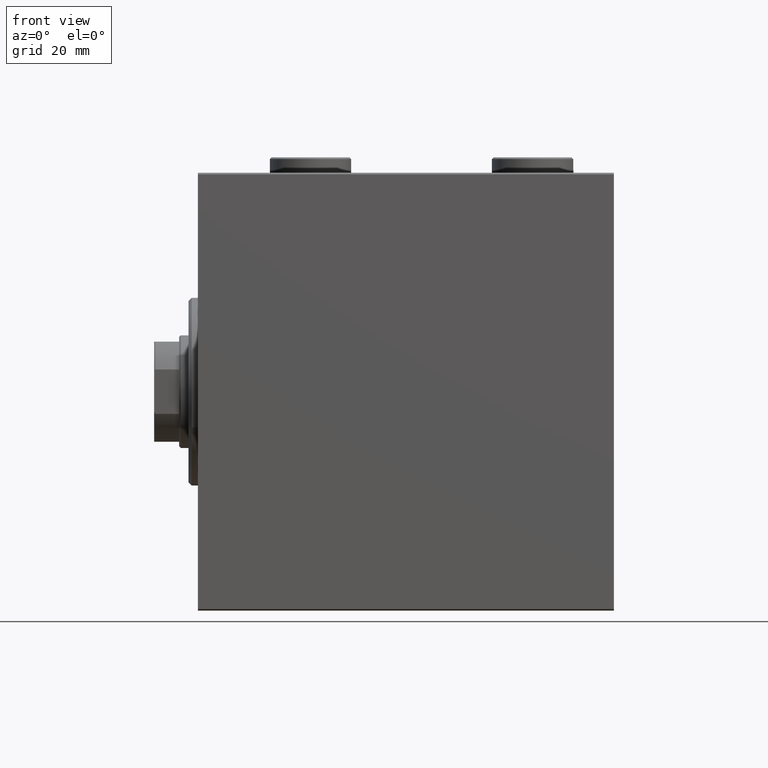
[diagram: clean part render]
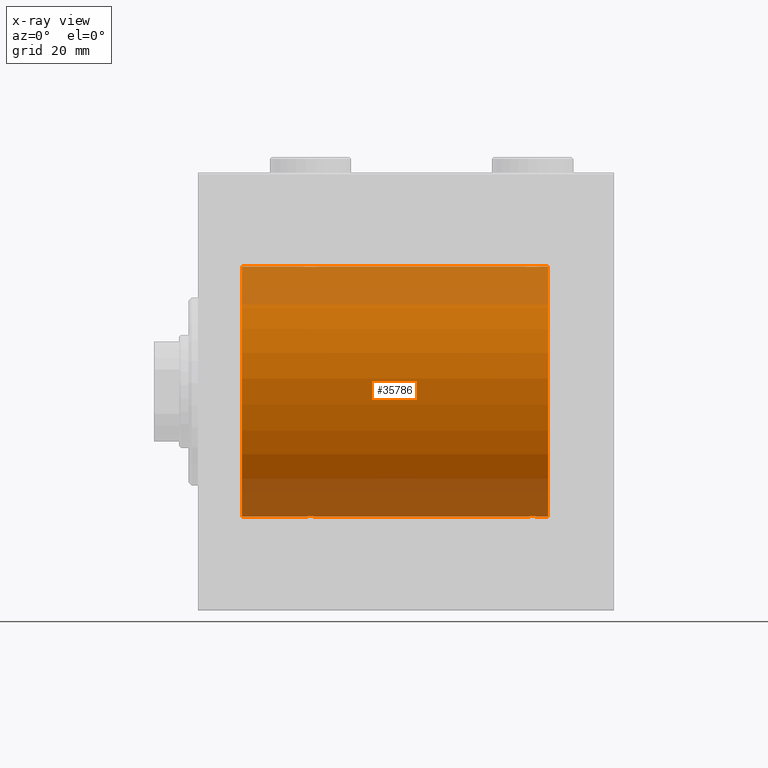
[diagram: x-ray — body ghosted, one internal face saturated and labeled with its STEP entity id]
A machine part, front view, then the same camera in x-ray: the body is ghosted and one INTERNAL B-rep face — a face not visible from any outside direction — is saturated and labeled: STEP entity #35786.
In plain terms, the highlighted cylindrical surface (partial cylindrical patch) has radius 40 mm, axis along (-1, -0, -0).
Its self-contained STEP definition (entity closure, byte-faithful):
#107 = CARTESIAN_POINT ( 'NONE',  ( 35.79958713980801832, -2.999840380514748883, 39.88735335562824247 ) ) ;
#132 = CARTESIAN_POINT ( 'NONE',  ( 107.9693834189446875, -2.845855236045339520, -39.89870693240651178 ) ) ;
#343 = CARTESIAN_POINT ( 'NONE',  ( 32.99999999999999289, -1.483452932268112700E-23, 40.00000000000000000 ) ) ;
#372 = CARTESIAN_POINT ( 'NONE',  ( 37.50443082913467663, -2.602909538701744463, -39.91537030566261279 ) ) ;
#490 = CARTESIAN_POINT ( 'NONE',  ( 13.99999999999999822, 4.898587196589413026E-15, -40.00000000000000000 ) ) ;
#824 = CARTESIAN_POINT ( 'NONE',  ( 38.69721340580881019, -1.327859336864143147, -39.97836169682018692 ) ) ;
#992 = CARTESIAN_POINT ( 'NONE',  ( 32.99999999999999289, -1.483452932268112700E-23, 40.00000000000000000 ) ) ;
#1493 = CARTESIAN_POINT ( 'NONE',  ( 104.0000000000000142, 4.637093495725619447E-15, -40.00000000000000000 ) ) ;
#1544 = DIRECTION ( 'NONE',  ( -1.000000000000000000, -0.000000000000000000, -0.000000000000000000 ) ) ;
#2485 = ORIENTED_EDGE ( 'NONE', *, *, #10257, .F. ) ;
#2629 = EDGE_CURVE ( 'NONE', #12232, #3521, #14010, .T. ) ;
#2689 = CARTESIAN_POINT ( 'NONE',  ( 104.6149239908464921, -1.830402106103529380, 39.95843610133493229 ) ) ;
#2858 = LINE ( 'NONE', #28056, #36745 ) ;
#2904 = CARTESIAN_POINT ( 'NONE',  ( 104.1533472698686182, -0.9668189122103458821, 39.98872185468384544 ) ) ;
#3045 = VERTEX_POINT ( 'NONE', #36178 ) ;
#3129 = CARTESIAN_POINT ( 'NONE',  ( 107.1956053107308406, -3.000157693440651752, 39.88732948994960026 ) ) ;
#3325 = CARTESIAN_POINT ( 'NONE',  ( 34.16955177177597847, -2.384933850258108556, 39.92898715513240404 ) ) ;
#3348 = CARTESIAN_POINT ( 'NONE',  ( 110.0000000000000142, 4.898587181754971267E-15, -40.00000000000000000 ) ) ;
#3521 = VERTEX_POINT ( 'NONE', #19783 ) ;
#3538 = CARTESIAN_POINT ( 'NONE',  ( 33.73902383005257377, -1.981471132463168638, 39.95113231465138881 ) ) ;
#3995 = CARTESIAN_POINT ( 'NONE',  ( 38.25829670320501918, -1.984537326394312462, 39.95097977400578060 ) ) ;
#4239 = CARTESIAN_POINT ( 'NONE',  ( 104.7417032967949950, -1.984537326394304468, -39.95097977400578060 ) ) ;
#4486 = CARTESIAN_POINT ( 'NONE',  ( 37.33224268865864559, -2.695129988695730727, -39.90917164320281074 ) ) ;
#4942 = CARTESIAN_POINT ( 'NONE',  ( 35.03510674146485115, -2.847401743820447084, -39.89859630624608400 ) ) ;
#5164 = CARTESIAN_POINT ( 'NONE',  ( 34.17309815367587333, -2.387636253591803648, -39.92882473497732576 ) ) ;
#5393 = DIRECTION ( 'NONE',  ( -1.000000000000000000, 0.000000000000000000, 0.000000000000000000 ) ) ;
#5895 = CARTESIAN_POINT ( 'NONE',  ( 105.4955691708653518, -2.602909538701771996, 39.91537030566259148 ) ) ;
#6073 = EDGE_CURVE ( 'NONE', #8242, #17392, #18845, .T. ) ;
#6343 = CARTESIAN_POINT ( 'NONE',  ( 109.6018872812849310, -1.506322235190793668, 39.97196309111975410 ) ) ;
#6550 = CARTESIAN_POINT ( 'NONE',  ( 107.2004128601920030, -2.999840380514741334, -39.88735335562824957 ) ) ;
#6559 = CARTESIAN_POINT ( 'NONE',  ( 110.0000000000000142, -2.794909241144302331E-15, 40.00000000000000000 ) ) ;
#6651 = VECTOR ( 'NONE', #37714, 1000.000000000000000 ) ;
#6752 = VERTEX_POINT ( 'NONE', #490 ) ;
#6789 = CARTESIAN_POINT ( 'NONE',  ( 108.3285364474629660, -2.696981015661940262, 39.90904630908467254 ) ) ;
#6985 = CARTESIAN_POINT ( 'NONE',  ( 38.60188728128492386, -1.506322235190783232, 39.97196309111974699 ) ) ;
#7007 = CARTESIAN_POINT ( 'NONE',  ( 108.3322426886586669, -2.695129988695733836, -39.90917164320281785 ) ) ;
#7033 = AXIS2_PLACEMENT_3D ( 'NONE', #34891, #31469, #27812 ) ;
#7205 = CARTESIAN_POINT ( 'NONE',  ( 33.39566400087915810, -1.502129635934004170, 39.97212271185186694 ) ) ;
#7433 = CARTESIAN_POINT ( 'NONE',  ( 38.99999999999999289, -0.3964922677423670661, 40.00000000000000711 ) ) ;
#7459 = CARTESIAN_POINT ( 'NONE',  ( 108.5044308291346482, -2.602909538701758674, -39.91537030566259148 ) ) ;
#7469 = CARTESIAN_POINT ( 'NONE',  ( 35.80439468926913094, -3.000157693440628659, -39.88732948994960736 ) ) ;
#8242 = VERTEX_POINT ( 'NONE', #42362 ) ;
#8390 = ORIENTED_EDGE ( 'NONE', *, *, #26087, .T. ) ;
#8826 = ORIENTED_EDGE ( 'NONE', *, *, #14335, .T. ) ;
#8942 = VECTOR ( 'NONE', #1544, 1000.000000000000000 ) ;
#9759 = LINE ( 'NONE', #23760, #6651 ) ;
#9783 = CARTESIAN_POINT ( 'NONE',  ( 104.0000000000000142, -1.483492375313373751E-23, 40.00000000000000000 ) ) ;
#9796 = ORIENTED_EDGE ( 'NONE', *, *, #24885, .T. ) ;
#10006 = CARTESIAN_POINT ( 'NONE',  ( 108.5008846840403436, -2.604941918888326935, 39.91523680494982784 ) ) ;
#10058 = CARTESIAN_POINT ( 'NONE',  ( 36.96938341894464486, -2.845855236045336412, -39.89870693240652599 ) ) ;
#10191 = CARTESIAN_POINT ( 'NONE',  ( 33.09574826348647036, -0.7773146824711031355, 39.99291453282343412 ) ) ;
#10224 = CARTESIAN_POINT ( 'NONE',  ( 107.3910969250933505, -2.980812880639910123, 39.88879797994688658 ) ) ;
#10257 = EDGE_CURVE ( 'NONE', #12062, #17396, #2858, .T. ) ;
#10425 = CARTESIAN_POINT ( 'NONE',  ( 37.50088468404035069, -2.604941918888315833, 39.91523680494983495 ) ) ;
#10446 = CARTESIAN_POINT ( 'NONE',  ( 108.9846144781227935, -2.258217541132904405, -39.93644519243652979 ) ) ;
#10523 = VERTEX_POINT ( 'NONE', #23222 ) ;
#10674 = CARTESIAN_POINT ( 'NONE',  ( 107.3952248345357390, -2.980272303779549325, -39.88883864243167920 ) ) ;
#10771 = FACE_OUTER_BOUND ( 'NONE', #30140, .T. ) ;
#10866 = CARTESIAN_POINT ( 'NONE',  ( 38.69537007708435539, -1.331594428131646080, 39.97823692017209396 ) ) ;
#10940 = CARTESIAN_POINT ( 'NONE',  ( 39.00000000000000000, -1.886242593979369380E-15, 40.00000000000000000 ) ) ;
#11127 = CARTESIAN_POINT ( 'NONE',  ( 104.6174831908853804, -1.833695109615715690, -39.95828327492363741 ) ) ;
#11359 = CARTESIAN_POINT ( 'NONE',  ( 106.0351067414648725, -2.847401743820458631, -39.89859630624608400 ) ) ;
#11366 = CARTESIAN_POINT ( 'NONE',  ( 37.98461447812281477, -2.258217541132894191, -39.93644519243654400 ) ) ;
#11582 = CARTESIAN_POINT ( 'NONE',  ( 105.0186372048576970, -2.261082456166704446, -39.93628274425758917 ) ) ;
#11588 = CARTESIAN_POINT ( 'NONE',  ( 38.90425173651352253, -0.7773146824710970293, -39.99291453282343412 ) ) ;
#11643 = B_SPLINE_CURVE_WITH_KNOTS ( 'NONE', 3,
 ( #3348, #17324, #31297, #45277, #18007, #42285, #24880, #13881, #38849, #10446, #24438, #7459, #7007, #132, #42066, #10674, #6550, #21444, #20540, #33105, #11359, #32445, #15475, #43207, #11582, #4239, #11127, #11810, #29231, #35859, #18701, #1493 ),
 .UNSPECIFIED., .F., .F.,
 ( 4, 2, 2, 2, 2, 2, 2, 2, 2, 2, 2, 2, 2, 2, 2, 4 ),
 ( 0.009382660366305127855, 0.009968941372944165394, 0.01055522237958320120, 0.01114150338622223874, 0.01172778439286127627, 0.01231406539950031381, 0.01290034640613934962, 0.01348662741277838716, 0.01407290841941742296, 0.01465918942605646050, 0.01524547043269549804, 0.01583175143933453557, 0.01641803244597356964, 0.01700431345261260718, 0.01759059445925164472, 0.01876315647252971980 ),
 .UNSPECIFIED. ) ;
#11810 = CARTESIAN_POINT ( 'NONE',  ( 104.3981127187150832, -1.506322235190780345, -39.97196309111975410 ) ) ;
#12062 = VERTEX_POINT ( 'NONE', #44874 ) ;
#12232 = VERTEX_POINT ( 'NONE', #21130 ) ;
#12481 = CARTESIAN_POINT ( 'NONE',  ( 33.61748319088536618, -1.833695109615709917, -39.95828327492364451 ) ) ;
#12721 = CARTESIAN_POINT ( 'NONE',  ( 33.30462992291564461, -1.331594428131637420, -39.97823692017210817 ) ) ;
#12781 = CARTESIAN_POINT ( 'NONE',  ( 105.6677573113413615, -2.695129988695747603, 39.90917164320281785 ) ) ;
#13001 = CARTESIAN_POINT ( 'NONE',  ( 109.6953700770843767, -1.331594428131652963, 39.97823692017208685 ) ) ;
#13225 = CARTESIAN_POINT ( 'NONE',  ( 104.3027865941912182, -1.327859336864157358, 39.97836169682016561 ) ) ;
#13881 = CARTESIAN_POINT ( 'NONE',  ( 109.3850760091535506, -1.830402106103516058, -39.95843610133493229 ) ) ;
#14010 = LINE ( 'NONE', #27998, #21955 ) ;
#14087 = CARTESIAN_POINT ( 'NONE',  ( 35.22130476584258219, -2.903766417398241373, 39.89448096967571189 ) ) ;
#14335 = EDGE_CURVE ( 'NONE', #10523, #3045, #43484, .T. ) ;
#14345 = CARTESIAN_POINT ( 'NONE',  ( 36.77869523415741781, -2.903766417398227162, -39.89448096967571900 ) ) ;
#14561 = CARTESIAN_POINT ( 'NONE',  ( 38.98101877110926239, -0.3904143323715922875, -39.99856256910221219 ) ) ;
#15253 = CARTESIAN_POINT ( 'NONE',  ( 33.39811271871507614, -1.506322235190776127, -39.97196309111974699 ) ) ;
#15475 = CARTESIAN_POINT ( 'NONE',  ( 105.4991153159596564, -2.604941918888313612, -39.91523680494982784 ) ) ;
#15660 = B_SPLINE_CURVE_WITH_KNOTS ( 'NONE', 3,
 ( #9783, #16454, #41173, #31091, #2904, #13225, #23783, #2689, #45073, #27437, #27208, #5895, #12781, #41405, #30866, #37515, #20333, #3129, #10224, #30419, #37739, #6789, #10006, #41619, #44396, #23990, #37276, #6343, #13001, #26763, #37950, #6559 ),
 .UNSPECIFIED., .F., .F.,
 ( 4, 2, 2, 2, 2, 2, 2, 2, 2, 2, 2, 2, 2, 2, 2, 4 ),
 ( 0.009382660366305098365, 0.009968941372944135904, 0.01055522237958317344, 0.01114150338622220925, 0.01172778439286124678, 0.01231406539950028432, 0.01290034640613932013, 0.01348662741277835767, 0.01407290841941739520, 0.01465918942605643274, 0.01524547043269547028, 0.01583175143933450435, 0.01641803244597354189, 0.01700431345261257943, 0.01759059445925161697, 0.01876315647252969204 ),
 .UNSPECIFIED. ) ;
#16162 = CARTESIAN_POINT ( 'NONE',  ( 34.01863720485771125, -2.261082456166694676, -39.93628274425758917 ) ) ;
#16170 = ORIENTED_EDGE ( 'NONE', *, *, #2629, .F. ) ;
#16454 = CARTESIAN_POINT ( 'NONE',  ( 104.0000000000000142, -0.1957844162750575212, 39.99999999999999289 ) ) ;
#16520 = ORIENTED_EDGE ( 'NONE', *, *, #44957, .T. ) ;
#17235 = LINE ( 'NONE', #17451, #30350 ) ;
#17303 = CARTESIAN_POINT ( 'NONE',  ( 35.60477516546423260, -2.980272303779554655, 39.88883864243167920 ) ) ;
#17324 = CARTESIAN_POINT ( 'NONE',  ( 110.0000000000000284, -0.1957844162750512762, -39.99999999999999289 ) ) ;
#17392 = VERTEX_POINT ( 'NONE', #32496 ) ;
#17396 = VERTEX_POINT ( 'NONE', #10940 ) ;
#17418 = DIRECTION ( 'NONE',  ( -1.000000000000000000, -0.000000000000000000, -0.000000000000000000 ) ) ;
#17451 = CARTESIAN_POINT ( 'NONE',  ( 112.0000000000000000, 4.898587196589413026E-15, -40.00000000000000000 ) ) ;
#17518 = CARTESIAN_POINT ( 'NONE',  ( 35.03061658105535514, -2.845855236045346626, 39.89870693240651889 ) ) ;
#17651 = CYLINDRICAL_SURFACE ( 'NONE', #27926, 40.00000000000000000 ) ;
#17754 = CARTESIAN_POINT ( 'NONE',  ( 37.82690184632411956, -2.387636253591820523, 39.92882473497731866 ) ) ;
#17784 = CARTESIAN_POINT ( 'NONE',  ( 38.38507600915352924, -1.830402106103509174, -39.95843610133493229 ) ) ;
#18007 = CARTESIAN_POINT ( 'NONE',  ( 109.8466527301314102, -0.9668189122103358901, -39.98872185468385254 ) ) ;
#18701 = CARTESIAN_POINT ( 'NONE',  ( 104.0000000000000284, -0.3964922677423631803, -40.00000000000000000 ) ) ;
#18845 = B_SPLINE_CURVE_WITH_KNOTS ( 'NONE', 3,
 ( #32212, #42770, #14561, #11588, #34560, #824, #25572, #17784, #27490, #11366, #39541, #372, #4486, #10058, #14345, #24890, #25350, #7469, #39772, #29900, #4942, #26709, #19603, #5164, #16162, #36330, #12481, #15253, #12721, #29685, #30132, #33556 ),
 .UNSPECIFIED., .F., .F.,
 ( 4, 2, 2, 2, 2, 2, 2, 2, 2, 2, 2, 2, 2, 2, 2, 4 ),
 ( 0.009382660366305113978, 0.009968941372944149781, 0.01055522237958318559, 0.01114150338622222139, 0.01172778439286125719, 0.01231406539950029300, 0.01290034640613932707, 0.01348662741277836287, 0.01407290841941739867, 0.01465918942605643448, 0.01524547043269547028, 0.01583175143933450435, 0.01641803244597354189, 0.01700431345261257943, 0.01759059445925161697, 0.01876315647252968857 ),
 .UNSPECIFIED. ) ;
#19603 = CARTESIAN_POINT ( 'NONE',  ( 34.49911531595964220, -2.604941918888299401, -39.91523680494982784 ) ) ;
#19783 = CARTESIAN_POINT ( 'NONE',  ( 110.0000000000000142, -2.794909241144302331E-15, 40.00000000000000000 ) ) ;
#20333 = CARTESIAN_POINT ( 'NONE',  ( 106.7995871398080254, -2.999840380514755100, 39.88735335562824957 ) ) ;
#20540 = CARTESIAN_POINT ( 'NONE',  ( 106.6089030749067064, -2.980812880639896356, -39.88879797994688658 ) ) ;
#20745 = CARTESIAN_POINT ( 'NONE',  ( 33.61492399084646365, -1.830402106103518056, 39.95843610133494650 ) ) ;
#21120 = DIRECTION ( 'NONE',  ( -1.000000000000000000, -0.000000000000000000, -0.000000000000000000 ) ) ;
#21122 = ORIENTED_EDGE ( 'NONE', *, *, #33231, .F. ) ;
#21130 = CARTESIAN_POINT ( 'NONE',  ( 112.0000000000000000, 0.000000000000000000, 40.00000000000000000 ) ) ;
#21188 = CARTESIAN_POINT ( 'NONE',  ( 36.39109692509333627, -2.980812880639903906, 39.88879797994688658 ) ) ;
#21444 = CARTESIAN_POINT ( 'NONE',  ( 106.8043946892691736, -3.000157693440637985, -39.88732948994960026 ) ) ;
#21702 = VERTEX_POINT ( 'NONE', #992 ) ;
#21917 = DIRECTION ( 'NONE',  ( 0.000000000000000000, 0.000000000000000000, 1.000000000000000000 ) ) ;
#21955 = VECTOR ( 'NONE', #41967, 1000.000000000000000 ) ;
#22151 = CARTESIAN_POINT ( 'NONE',  ( 112.0000000000000000, 0.000000000000000000, 0.000000000000000000 ) ) ;
#22586 = EDGE_CURVE ( 'NONE', #12062, #3521, #15660, .T. ) ;
#22591 = CARTESIAN_POINT ( 'NONE',  ( 104.0000000000000142, 4.637093495725619447E-15, -40.00000000000000000 ) ) ;
#22750 = CARTESIAN_POINT ( 'NONE',  ( 13.99999999999999822, 0.000000000000000000, 40.00000000000000000 ) ) ;
#23222 = CARTESIAN_POINT ( 'NONE',  ( 112.0000000000000000, 4.898587196589413026E-15, -40.00000000000000000 ) ) ;
#23760 = CARTESIAN_POINT ( 'NONE',  ( 112.0000000000000000, 4.898587196589413026E-15, -40.00000000000000000 ) ) ;
#23783 = CARTESIAN_POINT ( 'NONE',  ( 104.3956640008791794, -1.502129635934016383, 39.97212271185185983 ) ) ;
#23990 = CARTESIAN_POINT ( 'NONE',  ( 109.2582967032050192, -1.984537326394317569, 39.95097977400578060 ) ) ;
#24182 = CARTESIAN_POINT ( 'NONE',  ( 33.15334726986859692, -0.9668189122103382216, 39.98872185468385254 ) ) ;
#24311 = CARTESIAN_POINT ( 'NONE',  ( 112.0000000000000000, 0.000000000000000000, 0.000000000000000000 ) ) ;
#24413 = CARTESIAN_POINT ( 'NONE',  ( 38.38251680911464803, -1.833695109615719021, 39.95828327492363741 ) ) ;
#24438 = CARTESIAN_POINT ( 'NONE',  ( 108.8304482282240286, -2.384933850258111221, -39.92898715513240404 ) ) ;
#24569 = ORIENTED_EDGE ( 'NONE', *, *, #22586, .T. ) ;
#24746 = LINE ( 'NONE', #31621, #44870 ) ;
#24860 = CARTESIAN_POINT ( 'NONE',  ( 38.92026174991646315, -0.7903958539027399199, 39.99381900068935636 ) ) ;
#24880 = CARTESIAN_POINT ( 'NONE',  ( 109.6043359991208632, -1.502129635934003504, -39.97212271185185273 ) ) ;
#24885 = EDGE_CURVE ( 'NONE', #3045, #25946, #11643, .T. ) ;
#24890 = CARTESIAN_POINT ( 'NONE',  ( 36.39522483453575319, -2.980272303779539556, -39.88883864243169342 ) ) ;
#25350 = CARTESIAN_POINT ( 'NONE',  ( 36.20041286019198168, -2.999840380514733340, -39.88735335562824957 ) ) ;
#25572 = CARTESIAN_POINT ( 'NONE',  ( 38.60433599912082769, -1.502129635933996621, -39.97212271185184562 ) ) ;
#25946 = VERTEX_POINT ( 'NONE', #22591 ) ;
#26087 = EDGE_CURVE ( 'NONE', #6752, #30824, #26819, .T. ) ;
#26709 = CARTESIAN_POINT ( 'NONE',  ( 34.67146355253703405, -2.696981015661913172, -39.90904630908467254 ) ) ;
#26763 = CARTESIAN_POINT ( 'NONE',  ( 109.9202617499164916, -0.7903958539027468033, 39.99381900068937057 ) ) ;
#26819 = CIRCLE ( 'NONE', #7033, 40.00000000000000000 ) ;
#27208 = CARTESIAN_POINT ( 'NONE',  ( 105.1695517717759998, -2.384933850258125876, 39.92898715513240404 ) ) ;
#27437 = CARTESIAN_POINT ( 'NONE',  ( 105.0153855218772065, -2.258217541132916395, 39.93644519243652979 ) ) ;
#27490 = CARTESIAN_POINT ( 'NONE',  ( 38.26097616994741912, -1.981471132463159535, -39.95113231465138881 ) ) ;
#27619 = CARTESIAN_POINT ( 'NONE',  ( 33.01898122889073051, -0.3904143323715975056, 39.99856256910221219 ) ) ;
#27812 = DIRECTION ( 'NONE',  ( 0.000000000000000000, 0.000000000000000000, 1.000000000000000000 ) ) ;
#27926 = AXIS2_PLACEMENT_3D ( 'NONE', #24311, #17418, #27976 ) ;
#27975 = B_SPLINE_CURVE_WITH_KNOTS ( 'NONE', 3,
 ( #343, #34921, #27619, #10191, #24182, #38147, #7205, #20745, #3538, #34702, #3325, #38603, #28301, #17518, #14087, #17303, #107, #41811, #21188, #35149, #31275, #45252, #10425, #17754, #42264, #3995, #24413, #6985, #10866, #24860, #7433, #43187 ),
 .UNSPECIFIED., .F., .F.,
 ( 4, 2, 2, 2, 2, 2, 2, 2, 2, 2, 2, 2, 2, 2, 2, 4 ),
 ( 0.009382660366305081018, 0.009968941372944116822, 0.01055522237958315263, 0.01114150338622219016, 0.01172778439286122597, 0.01231406539950026177, 0.01290034640613929931, 0.01348662741277833511, 0.01407290841941737092, 0.01465918942605640846, 0.01524547043269544253, 0.01583175143933448006, 0.01641803244597351413, 0.01700431345261255167, 0.01759059445925158921, 0.01876315647252966082 ),
 .UNSPECIFIED. ) ;
#27976 = DIRECTION ( 'NONE',  ( 0.000000000000000000, 0.000000000000000000, 1.000000000000000000 ) ) ;
#27998 = CARTESIAN_POINT ( 'NONE',  ( 112.0000000000000000, 0.000000000000000000, 40.00000000000000000 ) ) ;
#28056 = CARTESIAN_POINT ( 'NONE',  ( 112.0000000000000000, 0.000000000000000000, 40.00000000000000000 ) ) ;
#28301 = CARTESIAN_POINT ( 'NONE',  ( 34.66775731134134020, -2.695129988695739609, 39.90917164320281074 ) ) ;
#28645 = DIRECTION ( 'NONE',  ( -1.000000000000000000, -0.000000000000000000, -0.000000000000000000 ) ) ;
#29231 = CARTESIAN_POINT ( 'NONE',  ( 104.3046299229156233, -1.331594428131639640, -39.97823692017208685 ) ) ;
#29685 = CARTESIAN_POINT ( 'NONE',  ( 33.07973825008353685, -0.7903958539027335917, -39.99381900068937057 ) ) ;
#29900 = CARTESIAN_POINT ( 'NONE',  ( 35.22544321173659654, -2.904869018727211483, -39.89440043036668726 ) ) ;
#30132 = CARTESIAN_POINT ( 'NONE',  ( 33.00000000000000000, -0.3964922677423601272, -40.00000000000001421 ) ) ;
#30140 = EDGE_LOOP ( 'NONE', ( #21122, #8826, #9796, #16520, #42255, #35823, #8390, #44982, #39579, #2485, #24569, #16170 ) ) ;
#30350 = VECTOR ( 'NONE', #21120, 1000.000000000000000 ) ;
#30419 = CARTESIAN_POINT ( 'NONE',  ( 107.7745567882634248, -2.904869018727233687, 39.89440043036668726 ) ) ;
#30824 = VERTEX_POINT ( 'NONE', #22750 ) ;
#30866 = CARTESIAN_POINT ( 'NONE',  ( 106.2213047658425893, -2.903766417398247590, 39.89448096967571189 ) ) ;
#31091 = CARTESIAN_POINT ( 'NONE',  ( 104.0957482634864846, -0.7773146824711071323, 39.99291453282344833 ) ) ;
#31275 = CARTESIAN_POINT ( 'NONE',  ( 36.96489325853514174, -2.847401743820462183, 39.89859630624607689 ) ) ;
#31297 = CARTESIAN_POINT ( 'NONE',  ( 109.9810187711093050, -0.3904143323715937308, -39.99856256910221219 ) ) ;
#31469 = DIRECTION ( 'NONE',  ( -1.000000000000000000, 0.000000000000000000, 0.000000000000000000 ) ) ;
#31621 = CARTESIAN_POINT ( 'NONE',  ( 112.0000000000000000, 0.000000000000000000, 40.00000000000000000 ) ) ;
#32212 = CARTESIAN_POINT ( 'NONE',  ( 39.00000000000000000, 4.898587181755365697E-15, -40.00000000000000000 ) ) ;
#32445 = CARTESIAN_POINT ( 'NONE',  ( 105.6714635525370483, -2.696981015661927383, -39.90904630908467254 ) ) ;
#32496 = CARTESIAN_POINT ( 'NONE',  ( 32.99999999999999289, 8.398598542115384856E-15, -40.00000000000000000 ) ) ;
#32936 = CARTESIAN_POINT ( 'NONE',  ( 112.0000000000000000, 4.898587196589413026E-15, -40.00000000000000000 ) ) ;
#33105 = CARTESIAN_POINT ( 'NONE',  ( 106.2254432117366036, -2.904869018727219920, -39.89440043036668726 ) ) ;
#33231 = EDGE_CURVE ( 'NONE', #10523, #12232, #35894, .T. ) ;
#33556 = CARTESIAN_POINT ( 'NONE',  ( 32.99999999999999289, 8.398598542115384856E-15, -40.00000000000000000 ) ) ;
#34560 = CARTESIAN_POINT ( 'NONE',  ( 38.84665273013138886, -0.9668189122103337807, -39.98872185468385965 ) ) ;
#34583 = EDGE_CURVE ( 'NONE', #21702, #17396, #27975, .T. ) ;
#34702 = CARTESIAN_POINT ( 'NONE',  ( 34.01538552187719233, -2.258217541132905293, 39.93644519243653690 ) ) ;
#34891 = CARTESIAN_POINT ( 'NONE',  ( 13.99999999999999822, 0.000000000000000000, 0.000000000000000000 ) ) ;
#34921 = CARTESIAN_POINT ( 'NONE',  ( 32.99999999999997158, -0.1957844162750553285, 40.00000000000000000 ) ) ;
#35149 = CARTESIAN_POINT ( 'NONE',  ( 36.77455678826341057, -2.904869018727228358, 39.89440043036668015 ) ) ;
#35185 = EDGE_CURVE ( 'NONE', #17392, #6752, #9759, .T. ) ;
#35786 = ADVANCED_FACE ( 'NONE', ( #10771 ), #17651, .F. ) ;
#35823 = ORIENTED_EDGE ( 'NONE', *, *, #35185, .T. ) ;
#35859 = CARTESIAN_POINT ( 'NONE',  ( 104.0797382500835369, -0.7903958539027354790, -39.99381900068937057 ) ) ;
#35894 = CIRCLE ( 'NONE', #38839, 40.00000000000000000 ) ;
#36178 = CARTESIAN_POINT ( 'NONE',  ( 110.0000000000000142, 4.898587181754971267E-15, -40.00000000000000000 ) ) ;
#36330 = CARTESIAN_POINT ( 'NONE',  ( 33.74170329679496660, -1.984537326394296253, -39.95097977400577349 ) ) ;
#36745 = VECTOR ( 'NONE', #44795, 1000.000000000000000 ) ;
#37276 = CARTESIAN_POINT ( 'NONE',  ( 109.3825168091146622, -1.833695109615728125, 39.95828327492363741 ) ) ;
#37515 = CARTESIAN_POINT ( 'NONE',  ( 106.6047751654642468, -2.980272303779561316, 39.88883864243167920 ) ) ;
#37714 = DIRECTION ( 'NONE',  ( -1.000000000000000000, -0.000000000000000000, -0.000000000000000000 ) ) ;
#37739 = CARTESIAN_POINT ( 'NONE',  ( 107.9648932585351417, -2.847401743820471065, 39.89859630624608400 ) ) ;
#37950 = CARTESIAN_POINT ( 'NONE',  ( 110.0000000000000000, -0.3964922677423690645, 40.00000000000000000 ) ) ;
#38147 = CARTESIAN_POINT ( 'NONE',  ( 33.30278659419118270, -1.327859336864149586, 39.97836169682017982 ) ) ;
#38603 = CARTESIAN_POINT ( 'NONE',  ( 34.49556917086532337, -2.602909538701755565, 39.91537030566259148 ) ) ;
#38839 = AXIS2_PLACEMENT_3D ( 'NONE', #22151, #5393, #21917 ) ;
#38849 = CARTESIAN_POINT ( 'NONE',  ( 109.2609761699474404, -1.981471132463168638, -39.95113231465138881 ) ) ;
#39541 = CARTESIAN_POINT ( 'NONE',  ( 37.83044822822401443, -2.384933850258097010, -39.92898715513240404 ) ) ;
#39579 = ORIENTED_EDGE ( 'NONE', *, *, #34583, .T. ) ;
#39772 = CARTESIAN_POINT ( 'NONE',  ( 35.60890307490667794, -2.980812880639888363, -39.88879797994690080 ) ) ;
#39990 = EDGE_CURVE ( 'NONE', #21702, #30824, #24746, .T. ) ;
#41173 = CARTESIAN_POINT ( 'NONE',  ( 104.0189812288907376, -0.3904143323716007807, 39.99856256910221219 ) ) ;
#41405 = CARTESIAN_POINT ( 'NONE',  ( 106.0306165810553409, -2.845855236045354619, 39.89870693240651178 ) ) ;
#41619 = CARTESIAN_POINT ( 'NONE',  ( 108.8269018463241053, -2.387636253591832514, 39.92882473497732576 ) ) ;
#41811 = CARTESIAN_POINT ( 'NONE',  ( 36.19560531073086196, -3.000157693440645090, 39.88732948994960026 ) ) ;
#41967 = DIRECTION ( 'NONE',  ( -1.000000000000000000, -0.000000000000000000, -0.000000000000000000 ) ) ;
#42066 = CARTESIAN_POINT ( 'NONE',  ( 107.7786952341574249, -2.903766417398237820, -39.89448096967571189 ) ) ;
#42255 = ORIENTED_EDGE ( 'NONE', *, *, #6073, .T. ) ;
#42264 = CARTESIAN_POINT ( 'NONE',  ( 37.98136279514229585, -2.261082456166712440, 39.93628274425758207 ) ) ;
#42285 = CARTESIAN_POINT ( 'NONE',  ( 109.6972134058088386, -1.327859336864146700, -39.97836169682017982 ) ) ;
#42362 = CARTESIAN_POINT ( 'NONE',  ( 39.00000000000000000, 4.898587181755365697E-15, -40.00000000000000000 ) ) ;
#42770 = CARTESIAN_POINT ( 'NONE',  ( 39.00000000000000000, -0.1957844162750501937, -39.99999999999999289 ) ) ;
#43187 = CARTESIAN_POINT ( 'NONE',  ( 39.00000000000000000, -1.886242593979369380E-15, 40.00000000000000000 ) ) ;
#43207 = CARTESIAN_POINT ( 'NONE',  ( 105.1730981536759089, -2.387636253591818747, -39.92882473497732576 ) ) ;
#43484 = LINE ( 'NONE', #32936, #8942 ) ;
#44396 = CARTESIAN_POINT ( 'NONE',  ( 108.9813627951423456, -2.261082456166716881, 39.93628274425758207 ) ) ;
#44795 = DIRECTION ( 'NONE',  ( -1.000000000000000000, -0.000000000000000000, -0.000000000000000000 ) ) ;
#44870 = VECTOR ( 'NONE', #28645, 1000.000000000000000 ) ;
#44874 = CARTESIAN_POINT ( 'NONE',  ( 104.0000000000000142, -1.483492375313373751E-23, 40.00000000000000000 ) ) ;
#44957 = EDGE_CURVE ( 'NONE', #25946, #8242, #17235, .T. ) ;
#44982 = ORIENTED_EDGE ( 'NONE', *, *, #39990, .F. ) ;
#45073 = CARTESIAN_POINT ( 'NONE',  ( 104.7390238300526022, -1.981471132463181295, 39.95113231465138881 ) ) ;
#45252 = CARTESIAN_POINT ( 'NONE',  ( 37.32853644746295885, -2.696981015661930936, 39.90904630908465833 ) ) ;
#45277 = CARTESIAN_POINT ( 'NONE',  ( 109.9042517365135296, -0.7773146824710993608, -39.99291453282344122 ) ) ;